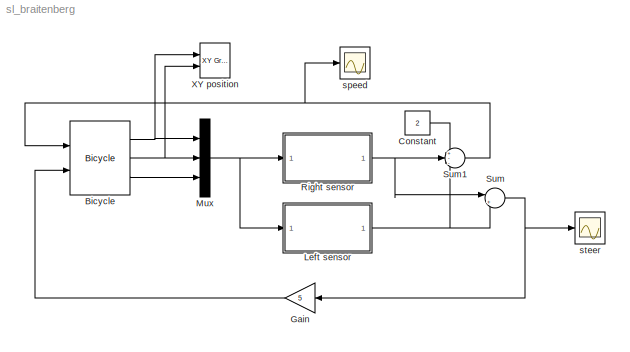
MODEL sl_braitenberg
KIND model
BLOCK [Reference] Bicycle  REF=roblocks/Dynamics/Bicycle  (lib defined in mdl_2a292b13c81b, mdl_69400f8cfe22, +12 more)
  L = 1
  Ports = [2, 3]
  SID = 19
  SourceBlock = roblocks/Dynamics/Bicycle
  accel = 1
  alim = 2
  handbrake = 0
  vlim = 1
  x0 = [5, 5, 0]
BLOCK [Constant] Constant
  SID = 21
  Value = 2
BLOCK [Gain] Gain
  Gain = 5
  OutDataTypeStr = Inherit: Inherit via internal rule
  ParamDataTypeStr = Inherit: Inherit via internal rule
  SID = 22
  SaturateOnIntegerOverflow = off
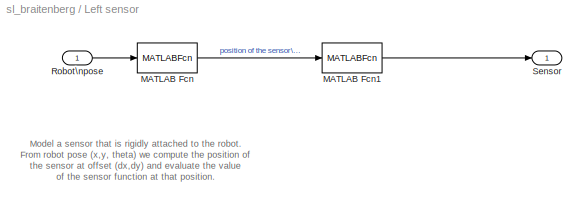
BLOCK [SubSystem] Left sensor
  FunctionWithSeparateData = off
  MaskCallbackString = ||
  MaskEnableString = on,on,on
  MaskHideContents = off
  MaskIconFrame = on
  MaskIconOpaque = on
  MaskIconRotate = none
  MaskIconUnits = autoscale
  MaskPortRotate = default
  MaskPromptString = Sensor position x|Sensor position y|Sensor function
  MaskStyleString = edit,edit,edit
  MaskToolTipString = on,on,on
  MaskTunableValueString = on,on,on
  MaskValueString = 0|-2|@sensorfield
  MaskVariables = dx=@1;dy=@2;sensorfunc=@3;
  MaskVisibilityString = on,on,on
  MinAlgLoopOccurrences = off
  Opaque = off
  Ports = [1, 1]
  PropExecContextOutsideSubsystem = off
  RTWSystemCode = Auto
  RequestExecContextInheritance = off
  SID = 4
BLOCK [MATLABFcn] Left sensor/MATLAB Fcn
  MATLABFcn = se2(u)*[dx; dy; 1]
  Ports = [1, 1]
  SID = 6
BLOCK [MATLABFcn] Left sensor/MATLAB Fcn1
  MATLABFcn = sensorfunc(u(1), u(2));
  OutputDimensions = 1
  Ports = [1, 1]
  SID = 7
BLOCK [Inport] Left sensor/Robot\npose
  IconDisplay = Port number
  SID = 5
BLOCK [Outport] Left sensor/Sensor
  IconDisplay = Port number
  SID = 8
BLOCK [Mux] Mux
  DisplayOption = bar
  Inputs = 3
  Ports = [3, 1]
  SID = 9
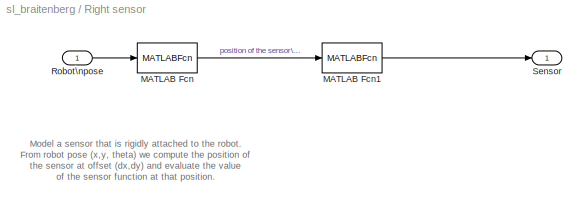
BLOCK [SubSystem] Right sensor
  FunctionWithSeparateData = off
  MaskCallbackString = ||
  MaskEnableString = on,on,on
  MaskHideContents = off
  MaskIconFrame = on
  MaskIconOpaque = on
  MaskIconRotate = none
  MaskIconUnits = autoscale
  MaskPortRotate = default
  MaskPromptString = Sensor position x|Sensor position y|Sensor function
  MaskStyleString = edit,edit,edit
  MaskToolTipString = on,on,on
  MaskTunableValueString = on,on,on
  MaskValueString = 0|2|@sensorfield
  MaskVariables = dx=@1;dy=@2;sensorfunc=@3;
  MaskVisibilityString = on,on,on
  MinAlgLoopOccurrences = off
  Opaque = off
  Ports = [1, 1]
  PropExecContextOutsideSubsystem = off
  RTWSystemCode = Auto
  RequestExecContextInheritance = off
  SID = 10
BLOCK [MATLABFcn] Right sensor/MATLAB Fcn
  MATLABFcn = se2(u)*[dx; dy; 1]
  Ports = [1, 1]
  SID = 12
BLOCK [MATLABFcn] Right sensor/MATLAB Fcn1
  MATLABFcn = sensorfunc(u(1), u(2));
  OutputDimensions = 1
  Ports = [1, 1]
  SID = 13
BLOCK [Inport] Right sensor/Robot\npose
  IconDisplay = Port number
  SID = 11
BLOCK [Outport] Right sensor/Sensor
  IconDisplay = Port number
  SID = 14
BLOCK [Sum] Sum
  IconShape = round
  InputSameDT = off
  Inputs = |+-
  OutDataTypeStr = Inherit: Inherit via internal rule
  Ports = [2, 1]
  SID = 16
  SaturateOnIntegerOverflow = off
BLOCK [Sum] Sum1
  IconShape = round
  InputSameDT = off
  Inputs = +--
  OutDataTypeStr = Inherit: Inherit via internal rule
  Ports = [3, 1]
  SID = 20
  SaturateOnIntegerOverflow = off
BLOCK [Reference] XY position  REF=simulink/Sinks/XY Graph
  Ports = [2]
  SID = 17
  SourceBlock = simulink/Sinks/XY Graph
  SourceType = XY scope.
  st = -1
  xmax = 100
  xmin = 0
  ymax = 100
  ymin = 0
BLOCK [Scope] speed
  DataFormat = StructureWithTime
  Floating = off
  NumInputPorts = 1
  Ports = [1]
  SID = 23
  SampleTime = 0
  SaveName = ScopeData1
  ShowLegends = off
  YMax = 0.0675
  YMin = 0.035
BLOCK [Scope] steer
  DataFormat = StructureWithTime
  Floating = off
  NumInputPorts = 1
  Ports = [1]
  SID = 15
  SampleTime = 0
  ShowLegends = off
  YMax = 0.0675
  YMin = 0.035
ANNOTATION Left sensor: Model a sensor that is rigidly attached to the robot.\nFrom robot pose (x,y, theta) we compute the position of\nthe sensor at offset (dx,dy) and evaluate the value\nof the sensor function at that position.
ANNOTATION Right sensor: Model a sensor that is rigidly attached to the robot.\nFrom robot pose (x,y, theta) we compute the position of\nthe sensor at offset (dx,dy) and evaluate the value\nof the sensor function at that position.
NET Bicycle:1 -> Mux:1, XY position:1
NET Bicycle:2 -> Mux:2, XY position:2
LINE Bicycle:3 -> Mux:3
LINE Constant:1 -> Sum1:1
LINE Gain:1 -> Bicycle:2
LINE Left sensor/MATLAB Fcn1:1 -> Left sensor/Sensor:1
LINE Left sensor/MATLAB Fcn:1 -> Left sensor/MATLAB Fcn1:1
LINE Left sensor/Robot\npose:1 -> Left sensor/MATLAB Fcn:1
NET Left sensor:1 -> Sum1:3, Sum:2
NET Mux:1 -> Left sensor:1, Right sensor:1
LINE Right sensor/MATLAB Fcn1:1 -> Right sensor/Sensor:1
LINE Right sensor/MATLAB Fcn:1 -> Right sensor/MATLAB Fcn1:1
LINE Right sensor/Robot\npose:1 -> Right sensor/MATLAB Fcn:1
NET Right sensor:1 -> Sum1:2, Sum:1
NET Sum1:1 -> Bicycle:1, speed:1
NET Sum:1 -> Gain:1, steer:1
note: NET lines group one-source signal fan-out (src -> all destinations, sorted); 1:1 wires keep LINE
